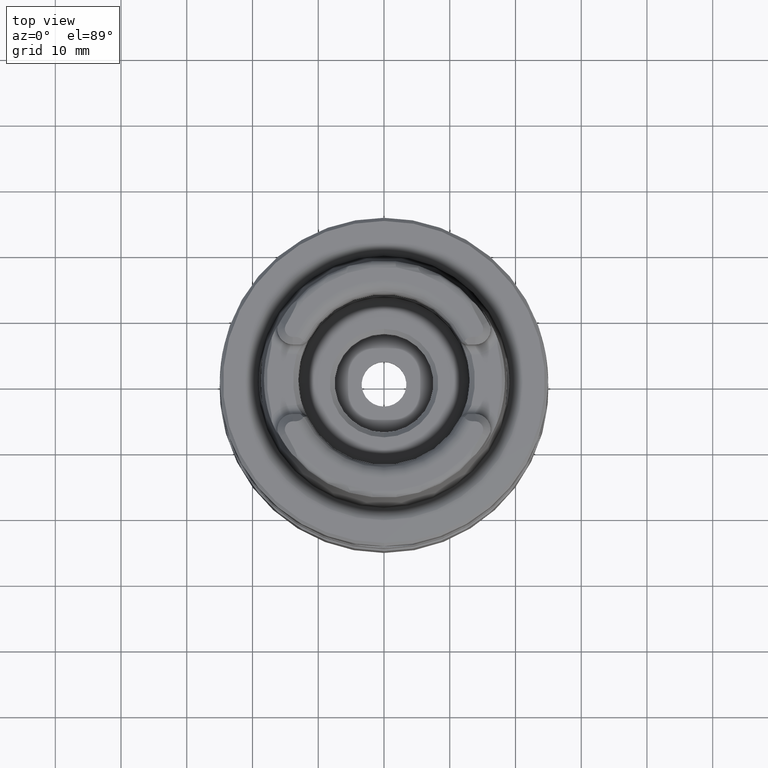
[diagram: clean part render]
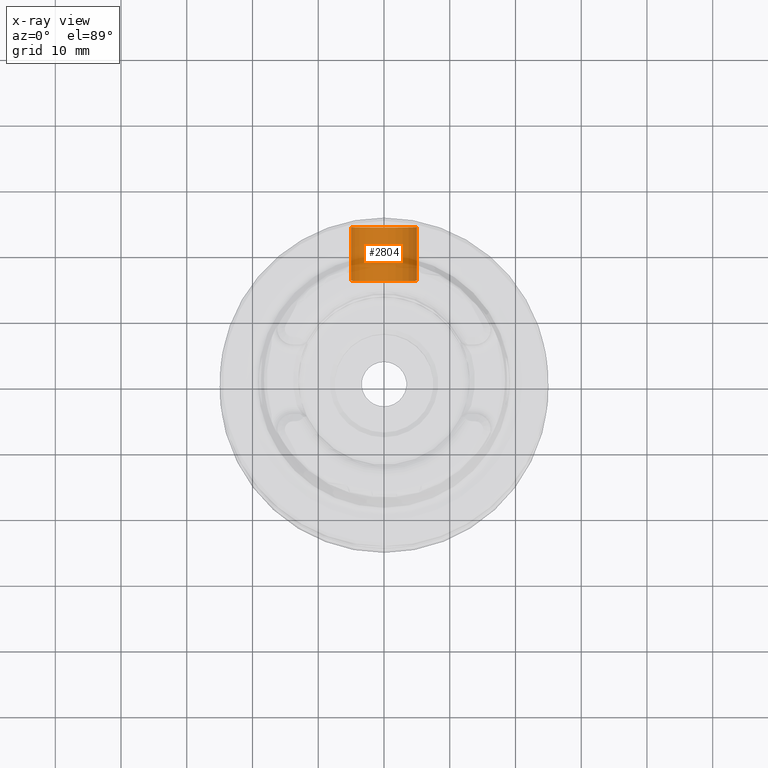
[diagram: x-ray — body ghosted, one internal face saturated and labeled with its STEP entity id]
A machine part, top view, then the same camera in x-ray: the body is ghosted and one INTERNAL B-rep face — a face not visible from any outside direction — is saturated and labeled: STEP entity #2804.
In plain terms, the highlighted cylindrical surface (edge-blend (fillet) strip) has radius 5 mm, axis along (0, 1, 0).
Its self-contained STEP definition (entity closure, byte-faithful):
#1588=VERTEX_POINT('NONE',#4577);
#1652=EDGE_CURVE('NONE',#1588,#2870,#4645,.T.);
#2386=VERTEX_POINT('NONE',#5441);
#2764=EDGE_CURVE('NONE',#3588,#2870,#5851,.T.);
#2804=ADVANCED_FACE('NONE',(#5895),#5896,.T.);
#2870=VERTEX_POINT('NONE',#5973);
#3202=EDGE_CURVE('NONE',#2386,#1588,#6338,.T.);
#3588=VERTEX_POINT('NONE',#6776);
#4084=EDGE_CURVE('NONE',#3588,#2386,#7320,.T.);
#4577=CARTESIAN_POINT('',(-5.00000000000008,24.4,-47.95));
#4645=CIRCLE('',#8127,5.0);
#5441=CARTESIAN_POINT('',(-5.00000000000011,16.2248711305964,-47.95));
#5851=LINE('',#11225,#11226);
#5895=FACE_OUTER_BOUND('',#11312,.T.);
#5896=CYLINDRICAL_SURFACE('',#11313,5.0);
#5973=CARTESIAN_POINT('',(4.99999999999992,24.4,-47.95));
#6338=LINE('',#12654,#12655);
#6776=CARTESIAN_POINT('',(4.99999999999989,16.2248711305964,-47.95));
#7320=CIRCLE('',#15524,5.0);
#8127=AXIS2_PLACEMENT_3D('',#17145,#17146,#17147);
#11225=CARTESIAN_POINT('',(4.99999999999992,25.0,-47.95));
#11226=VECTOR('',#18355,1000.0);
#11312=EDGE_LOOP('',(#18409,#18410,#18411,#18412));
#11313=AXIS2_PLACEMENT_3D('',#18413,#18414,#18415);
#12654=CARTESIAN_POINT('',(-5.00000000000008,25.0,-47.95));
#12655=VECTOR('',#18933,1000.0);
#15524=AXIS2_PLACEMENT_3D('',#20154,#20155,#20156);
#17145=CARTESIAN_POINT('',(-8.22244837107822E-014,24.4,-47.95));
#17146=DIRECTION('',(-3.49148336110938E-015,-1.0,-1.09731536435897E-016));
#17147=DIRECTION('',(1.0,-3.49148336110938E-015,-3.49148336110938E-015));
#18355=DIRECTION('',(3.49148336110938E-015,1.0,1.09731536435897E-016));
#18409=ORIENTED_EDGE('',*,*,#2764,.F.);
#18410=ORIENTED_EDGE('',*,*,#4084,.T.);
#18411=ORIENTED_EDGE('',*,*,#3202,.T.);
#18412=ORIENTED_EDGE('',*,*,#1652,.T.);
#18413=CARTESIAN_POINT('',(-8.01295936941165E-014,25.0,-47.95));
#18414=DIRECTION('',(3.49148336110938E-015,1.0,1.09731536435897E-016));
#18415=DIRECTION('',(-1.0,3.49148336110938E-015,3.49148336110938E-015));
#18933=DIRECTION('',(3.49148336110938E-015,1.0,1.09731536435897E-016));
#20154=CARTESIAN_POINT('',(-1.1076781013323E-013,16.2248711305964,-47.95));
#20155=DIRECTION('',(3.49148336110938E-015,1.0,1.09731536435897E-016));
#20156=DIRECTION('',(-1.0,3.49148336110938E-015,3.49148336110938E-015));